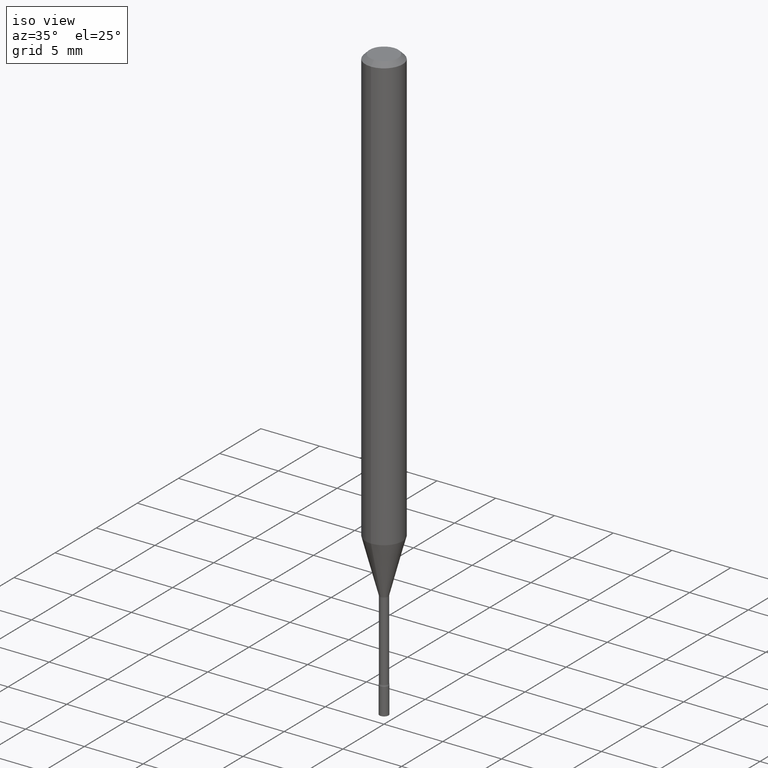
[diagram: clean part render]
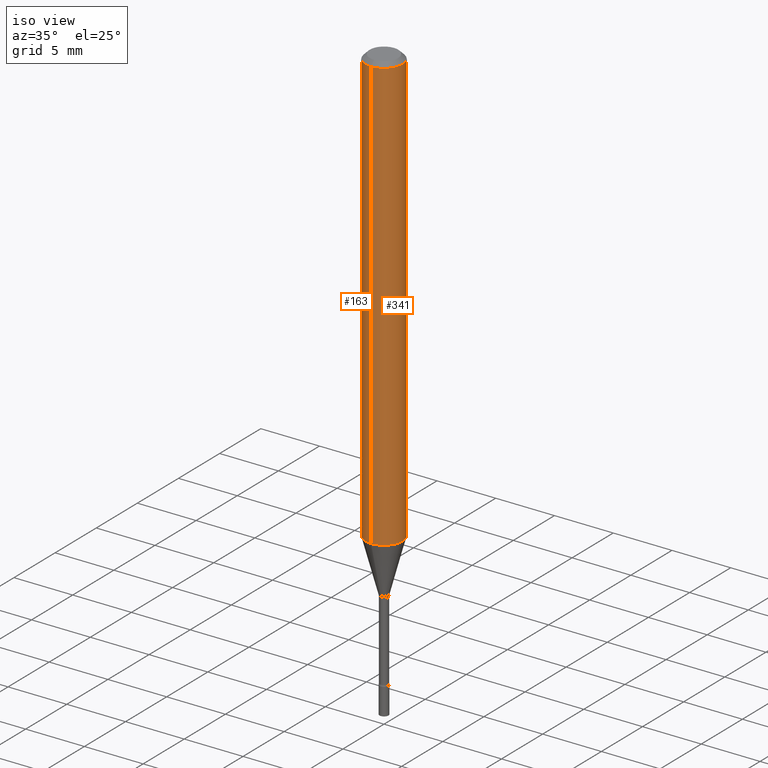
[diagram: same view with one multi-face feature highlighted, each face labeled with its STEP entity id]
A machine part, iso view. The highlighted faces form ONE feature: a constant-radius fillet chain: 2 tangent blend faces with common blend radius 1.5875 mm. The faces share edges in the B-rep.
Their STEP definitions:
[1] entity #341 (Cylinder):
#5 = EDGE_CURVE ( 'NONE', #91, #182, #307, .T. ) ;
#6 = FACE_OUTER_BOUND ( 'NONE', #152, .T. ) ;
#11 = CIRCLE ( 'NONE', #303, 0.06250000000000000000 ) ;
#32 = CARTESIAN_POINT ( 'NONE',  ( 4.440892098500985093E-16, 0.06249999999999995143, -0.01500000000000024751 ) ) ;
#49 = ORIENTED_EDGE ( 'NONE', *, *, #128, .F. ) ;
#59 = VERTEX_POINT ( 'NONE', #63 ) ;
#63 = CARTESIAN_POINT ( 'NONE',  ( -4.364351673553912750E-16, -0.06250000000000005551, -0.01499999999999981209 ) ) ;
#78 = CIRCLE ( 'NONE', #439, 0.06250000000000000000 ) ;
#85 = VERTEX_POINT ( 'NONE', #345 ) ;
#91 = VERTEX_POINT ( 'NONE', #338 ) ;
#100 = CARTESIAN_POINT ( 'NONE',  ( 4.440892098500625669E-16, 0.06250000000000000000, -2.182207402789355845E-16 ) ) ;
#101 = DIRECTION ( 'NONE',  ( -2.445433538299312121E-29, 3.491531844462969352E-15, 1.000000000000000000 ) ) ;
#128 = EDGE_CURVE ( 'NONE', #85, #59, #437, .T. ) ;
#135 = CARTESIAN_POINT ( 'NONE',  ( 3.568789263775920092E-29, -5.095432431713896168E-15, -1.459368740913666640 ) ) ;
#152 = EDGE_LOOP ( 'NONE', ( #327, #366, #167, #49 ) ) ;
#158 = VECTOR ( 'NONE', #265, 39.37007874015748143 ) ;
#164 = DIRECTION ( 'NONE',  ( -2.445433538299312121E-29, 3.491531844462969352E-15, 1.000000000000000000 ) ) ;
#167 = ORIENTED_EDGE ( 'NONE', *, *, #469, .F. ) ;
#168 = DIRECTION ( 'NONE',  ( -6.982962677686265922E-15, -1.000000000000000000, 4.370956789862821150E-15 ) ) ;
#178 = DIRECTION ( 'NONE',  ( -6.982962677686265922E-15, -1.000000000000000000, 3.483106191921935554E-15 ) ) ;
#182 = VERTEX_POINT ( 'NONE', #32 ) ;
#205 = DIRECTION ( 'NONE',  ( -6.982962677686265922E-15, -1.000000000000000000, 3.491531844462969352E-15 ) ) ;
#240 = CARTESIAN_POINT ( 'NONE',  ( 0.000000000000000000, 0.000000000000000000, 0.000000000000000000 ) ) ;
#265 = DIRECTION ( 'NONE',  ( -2.445433538299312121E-29, 3.491531844462969352E-15, 1.000000000000000000 ) ) ;
#303 = AXIS2_PLACEMENT_3D ( 'NONE', #135, #414, #168 ) ;
#307 = LINE ( 'NONE', #100, #158 ) ;
#308 = EDGE_CURVE ( 'NONE', #85, #91, #11, .T. ) ;
#322 = VECTOR ( 'NONE', #164, 39.37007874015748143 ) ;
#327 = ORIENTED_EDGE ( 'NONE', *, *, #308, .T. ) ;
#338 = CARTESIAN_POINT ( 'NONE',  ( 4.440892098500981149E-16, 0.06249999999999489297, -1.459368740913666862 ) ) ;
#341 = ADVANCED_FACE ( 'NONE', ( #6 ), #373, .T. ) ;
#345 = CARTESIAN_POINT ( 'NONE',  ( -4.364351673553560228E-16, -0.06250000000000510703, -1.459368740913666196 ) ) ;
#366 = ORIENTED_EDGE ( 'NONE', *, *, #5, .T. ) ;
#371 = AXIS2_PLACEMENT_3D ( 'NONE', #240, #408, #205 ) ;
#373 = CYLINDRICAL_SURFACE ( 'NONE', #371, 0.06250000000000000000 ) ;
#375 = CARTESIAN_POINT ( 'NONE',  ( 3.668150307448975398E-31, -5.237297766694464998E-17, -0.01500000000000003067 ) ) ;
#408 = DIRECTION ( 'NONE',  ( -2.445433538299312121E-29, 3.491531844462969352E-15, 1.000000000000000000 ) ) ;
#414 = DIRECTION ( 'NONE',  ( -2.445433538299312121E-29, 3.491531844462969352E-15, 1.000000000000000000 ) ) ;
#437 = LINE ( 'NONE', #442, #322 ) ;
#439 = AXIS2_PLACEMENT_3D ( 'NONE', #375, #101, #178 ) ;
#442 = CARTESIAN_POINT ( 'NONE',  ( -4.364351673553916201E-16, -0.06250000000000000000, 2.182207402789355845E-16 ) ) ;
#469 = EDGE_CURVE ( 'NONE', #59, #182, #78, .T. ) ;
[2] entity #163 (Cylinder):
#5 = EDGE_CURVE ( 'NONE', #91, #182, #307, .T. ) ;
#18 = DIRECTION ( 'NONE',  ( -2.445433538299312121E-29, 3.491531844462969352E-15, 1.000000000000000000 ) ) ;
#26 = CARTESIAN_POINT ( 'NONE',  ( 3.668150307448975398E-31, -5.237297766694464998E-17, -0.01500000000000003067 ) ) ;
#29 = CIRCLE ( 'NONE', #313, 0.06250000000000000000 ) ;
#32 = CARTESIAN_POINT ( 'NONE',  ( 4.440892098500985093E-16, 0.06249999999999995143, -0.01500000000000024751 ) ) ;
#33 = DIRECTION ( 'NONE',  ( -6.982962677686265922E-15, -1.000000000000000000, 3.491531844462969352E-15 ) ) ;
#59 = VERTEX_POINT ( 'NONE', #63 ) ;
#63 = CARTESIAN_POINT ( 'NONE',  ( -4.364351673553912750E-16, -0.06250000000000005551, -0.01499999999999981209 ) ) ;
#66 = EDGE_CURVE ( 'NONE', #182, #59, #29, .T. ) ;
#76 = CYLINDRICAL_SURFACE ( 'NONE', #352, 0.06250000000000000000 ) ;
#85 = VERTEX_POINT ( 'NONE', #345 ) ;
#91 = VERTEX_POINT ( 'NONE', #338 ) ;
#100 = CARTESIAN_POINT ( 'NONE',  ( 4.440892098500625669E-16, 0.06250000000000000000, -2.182207402789355845E-16 ) ) ;
#104 = EDGE_CURVE ( 'NONE', #91, #85, #276, .T. ) ;
#128 = EDGE_CURVE ( 'NONE', #85, #59, #437, .T. ) ;
#144 = CARTESIAN_POINT ( 'NONE',  ( 3.568789263775920092E-29, -5.095432431713896168E-15, -1.459368740913666640 ) ) ;
#154 = CARTESIAN_POINT ( 'NONE',  ( 0.000000000000000000, 0.000000000000000000, 0.000000000000000000 ) ) ;
#158 = VECTOR ( 'NONE', #265, 39.37007874015748143 ) ;
#163 = ADVANCED_FACE ( 'NONE', ( #394 ), #76, .T. ) ;
#164 = DIRECTION ( 'NONE',  ( -2.445433538299312121E-29, 3.491531844462969352E-15, 1.000000000000000000 ) ) ;
#180 = DIRECTION ( 'NONE',  ( -6.982962677686265922E-15, -1.000000000000000000, 3.483106191921935554E-15 ) ) ;
#182 = VERTEX_POINT ( 'NONE', #32 ) ;
#265 = DIRECTION ( 'NONE',  ( -2.445433538299312121E-29, 3.491531844462969352E-15, 1.000000000000000000 ) ) ;
#276 = CIRCLE ( 'NONE', #348, 0.06250000000000000000 ) ;
#279 = EDGE_LOOP ( 'NONE', ( #374, #283, #460, #376 ) ) ;
#283 = ORIENTED_EDGE ( 'NONE', *, *, #104, .T. ) ;
#307 = LINE ( 'NONE', #100, #158 ) ;
#312 = DIRECTION ( 'NONE',  ( -6.982962677686265922E-15, -1.000000000000000000, 4.370956789862821150E-15 ) ) ;
#313 = AXIS2_PLACEMENT_3D ( 'NONE', #26, #18, #180 ) ;
#322 = VECTOR ( 'NONE', #164, 39.37007874015748143 ) ;
#338 = CARTESIAN_POINT ( 'NONE',  ( 4.440892098500981149E-16, 0.06249999999999489297, -1.459368740913666862 ) ) ;
#345 = CARTESIAN_POINT ( 'NONE',  ( -4.364351673553560228E-16, -0.06250000000000510703, -1.459368740913666196 ) ) ;
#348 = AXIS2_PLACEMENT_3D ( 'NONE', #144, #476, #312 ) ;
#352 = AXIS2_PLACEMENT_3D ( 'NONE', #154, #517, #33 ) ;
#374 = ORIENTED_EDGE ( 'NONE', *, *, #5, .F. ) ;
#376 = ORIENTED_EDGE ( 'NONE', *, *, #66, .F. ) ;
#394 = FACE_OUTER_BOUND ( 'NONE', #279, .T. ) ;
#437 = LINE ( 'NONE', #442, #322 ) ;
#442 = CARTESIAN_POINT ( 'NONE',  ( -4.364351673553916201E-16, -0.06250000000000000000, 2.182207402789355845E-16 ) ) ;
#460 = ORIENTED_EDGE ( 'NONE', *, *, #128, .T. ) ;
#476 = DIRECTION ( 'NONE',  ( -2.445433538299312121E-29, 3.491531844462969352E-15, 1.000000000000000000 ) ) ;
#517 = DIRECTION ( 'NONE',  ( -2.445433538299312121E-29, 3.491531844462969352E-15, 1.000000000000000000 ) ) ;